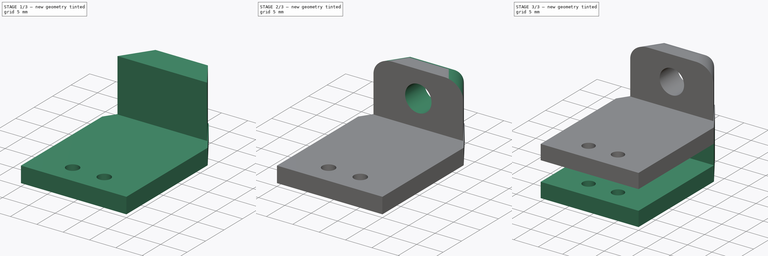
[diagram: build sequence overview — one tinted view per stage of 3, left to right]
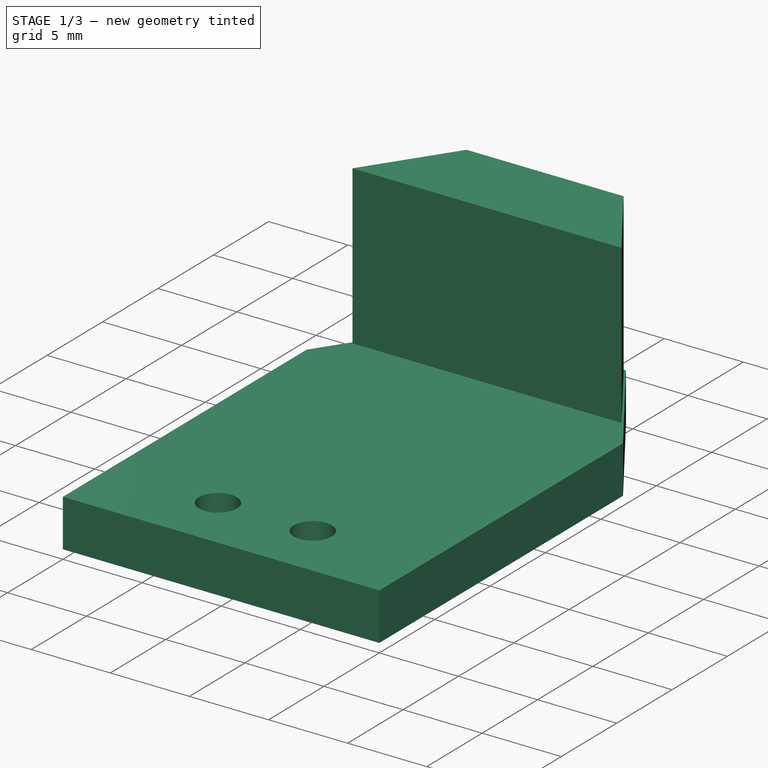
[diagram: stage 1 of 3 — iso view after this stage's code; geometry added in this stage tinted green]
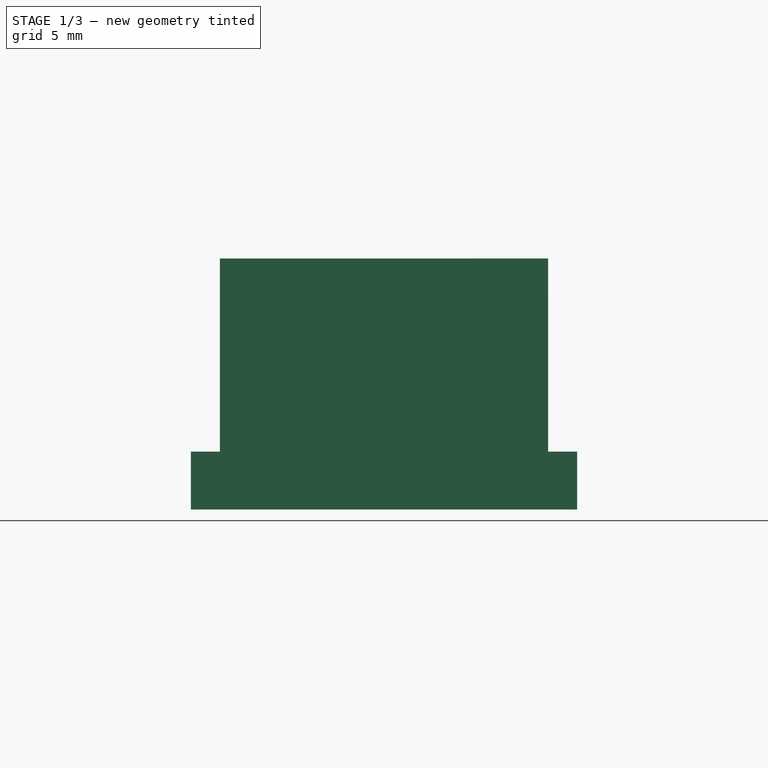
[diagram: stage 1 of 3 — front view after this stage's code; geometry added in this stage tinted green]
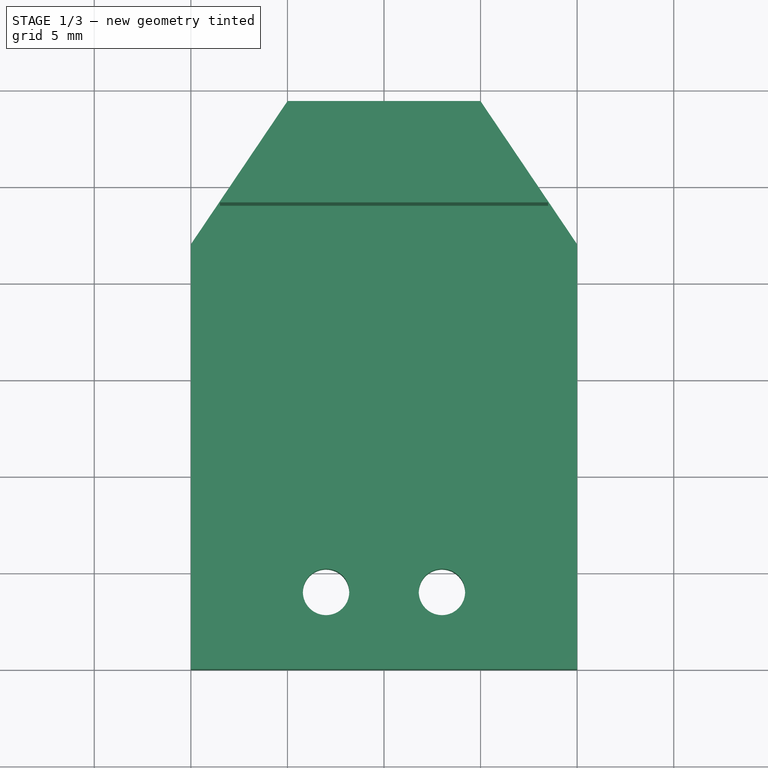
[diagram: stage 1 of 3 — top view after this stage's code; geometry added in this stage tinted green]
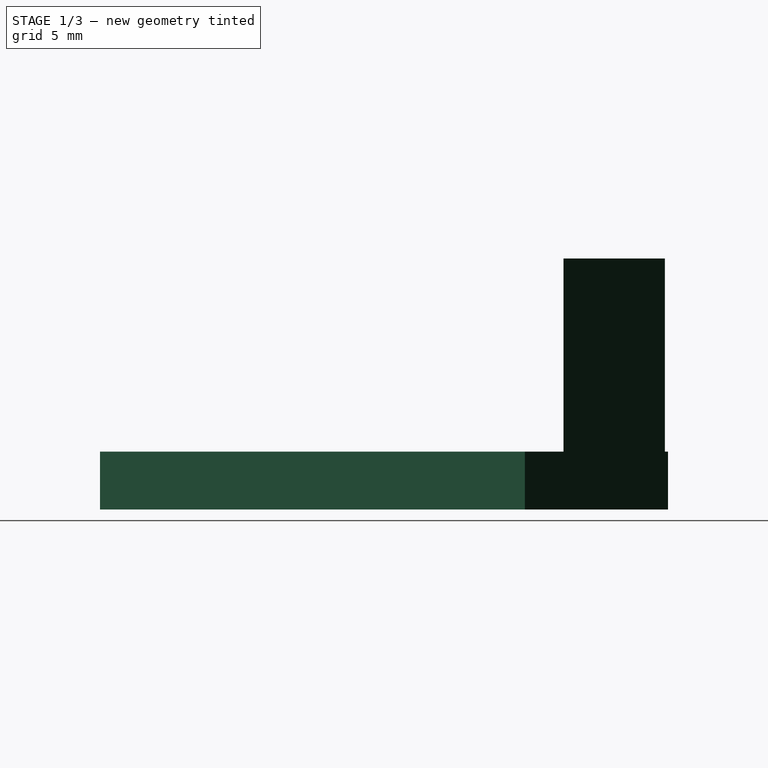
[diagram: stage 1 of 3 — right view after this stage's code; geometry added in this stage tinted green]
FCSTD DOCUMENT  (FreeCAD 0.21R33668 +26 (Git))
Label: stabiliser_holder_neutral
License: All rights reserved
LicenseURL: https://en.wikipedia.org/wiki/All_rights_reserved
objects: Sketcher::SketchObject×5, PartDesign::Pad×3, PartDesign::Pocket×2, PartDesign::Fillet×1, PartDesign::Body×1
note: 18 computed .brp shape members not serialized (recipe doc carries the construction recipe); baked Part::Feature solids carry a one-line shape summary decoded from their .brp

FEATURE [Sketcher::SketchObject] Sketch
  FullyConstrained = false
  MapMode = 5
  Support = -> [XY_Plane]
  sketch-geometry (15):
    g0: GeomPoint X=0 Y=22 Z=0
    g1: GeomPoint X=0 Y=4 Z=0
    g2: LineSegment StartX=0 StartY=4 StartZ=0 EndX=-7 EndY=4 EndZ=0
    g3: LineSegment StartX=-7 StartY=4 StartZ=0 EndX=-13 EndY=4 EndZ=0
    g4: Circle CenterX=-7 CenterY=4 CenterZ=0 NormalX=0 NormalY=0 NormalZ=1 AngleXU=0 Radius=1.2
    g5: Circle CenterX=-13 CenterY=4 CenterZ=0 NormalX=0 NormalY=0 NormalZ=1 AngleXU=0 Radius=1.2
    g6: GeomPoint X=-12.4528 Y=5.06796 Z=0
    g7: GeomPoint X=-6.92188 Y=5.19745 Z=0
    g8: LineSegment StartX=0 StartY=22 StartZ=0 EndX=-20 EndY=22 EndZ=0
    g9: LineSegment StartX=-20 StartY=22 StartZ=0 EndX=-20 EndY=0 EndZ=0
    g10: LineSegment StartX=-20 StartY=0 StartZ=0 EndX=0 EndY=0 EndZ=0
    g11: LineSegment StartX=0 StartY=0 StartZ=0 EndX=0 EndY=22 EndZ=0
    g12: LineSegment StartX=-20 StartY=22 StartZ=0 EndX=-15 EndY=29.4128 EndZ=0
    g13: LineSegment StartX=0 StartY=22 StartZ=0 EndX=-5 EndY=29.4128 EndZ=0
    g14: LineSegment StartX=-15 StartY=29.4128 StartZ=0 EndX=-5 EndY=29.4128 EndZ=0
  constraints (34):
    c: PointOnObject(g0,g-2)
    c: Distance(g-1,g0) = 22
    c: PointOnObject(g1,g-2)
    c: Distance(g1,g-1) = 4
    c: Coincident(g2,g1)
    c: Horizontal(g2)
    c: Distance(g2) = 7
    c: Coincident(g3,g2)
    c: Horizontal(g3)
    c: Distance(g3) = 6
    c: Coincident(g4,g2)
    c: Coincident(g5,g3)
    c: PointOnObject(g6,g5)
    c: PointOnObject(g7,g4)
    c: Distance(g5,g6) = 1.2
    c: Distance(g4,g7) = 1.2
    c: Coincident(g8,g0)
    c: Horizontal(g8)
    c: Coincident(g9,g8)
    c: PointOnObject(g9,g-1)
    c: Vertical(g9)
    c: Coincident(g10,g9)
    c: Coincident(g10,g-1)
    c: Coincident(g11,g10)
    c: Coincident(g11,g8)
    c: Distance(g8) = 20
    c: Coincident(g12,g8)
    c: Coincident(g13,g8)
    c: Coincident(g14,g12)
    c: Coincident(g14,g13)
    c: Horizontal(g14)
    c: Angle(g13,g8) = 0.977384
    c: Angle(g8,g12) = 0.977384
    c: Distance(g14) = 10
FEATURE [PartDesign::Pad] Pad
  Direction = (0,0,1)
  Length = 3
  Length2 = 10
  Profile = -> Sketch
  ReferenceAxis = -> Sketch [N_Axis]
  Type = 0
FEATURE [Sketcher::SketchObject] Sketch001
  FullyConstrained = false
  MapMode = 5
  Placement = pos=(0,0,3) rot=(0,0,1;0rad)
  Support = -> [Pad]
  sketch-geometry (7):
    g0: GeomPoint X=-10 Y=0 Z=0
    g1: LineSegment StartX=-10 StartY=0 StartZ=0 EndX=-10 EndY=24 EndZ=0
    g2: LineSegment StartX=-10 StartY=24 StartZ=0 EndX=-1.5 EndY=24 EndZ=0
    g3: LineSegment StartX=-10 StartY=24 StartZ=0 EndX=-18.5 EndY=24 EndZ=0
    g4: LineSegment StartX=-18.5 StartY=24 StartZ=0 EndX=-14.9616 EndY=29.2459 EndZ=0
    g5: LineSegment StartX=-1.5 StartY=24 StartZ=0 EndX=-5.03842 EndY=29.2459 EndZ=0
    g6: LineSegment StartX=-5.03842 StartY=29.2459 StartZ=0 EndX=-14.9616 EndY=29.2459 EndZ=0
  constraints (18):
    c: PointOnObject(g0,g-1)
    c: Distance(g-1,g0) = 10
    c: Coincident(g1,g0)
    c: Vertical(g1)
    c: Distance(g1) = 24
    c: Coincident(g2,g1)
    c: Horizontal(g2)
    c: Coincident(g3,g2)
    c: Horizontal(g3)
    c: Coincident(g4,g3)
    c: Coincident(g5,g2)
    c: Coincident(g6,g5)
    c: Coincident(g6,g4)
    c: Horizontal(g6)
    c: Angle(g5,g2) = 0.977384
    c: Angle(g3,g4) = 0.977384
    c: Distance(g2) = 8.5
    c: Distance(g3) = 8.5
FEATURE [PartDesign::Pad] Pad001
  BaseFeature = -> Pad
  Direction = (0,0,1)
  Length = 10
  Length2 = 10
  Profile = -> Sketch001
  ReferenceAxis = -> Sketch001 [N_Axis]
  Type = 0
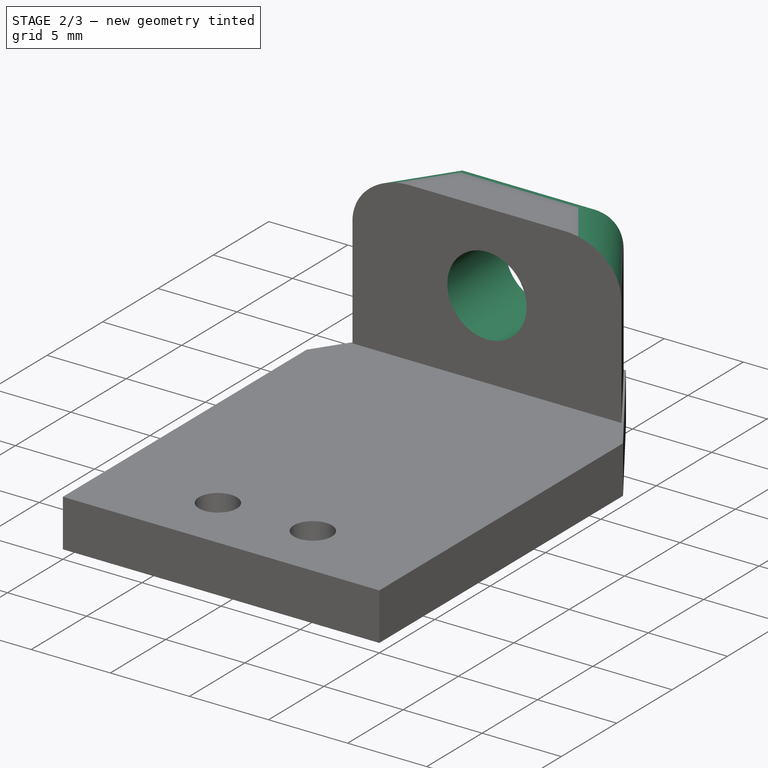
[diagram: stage 2 of 3 — iso view after this stage's code; geometry added in this stage tinted green]
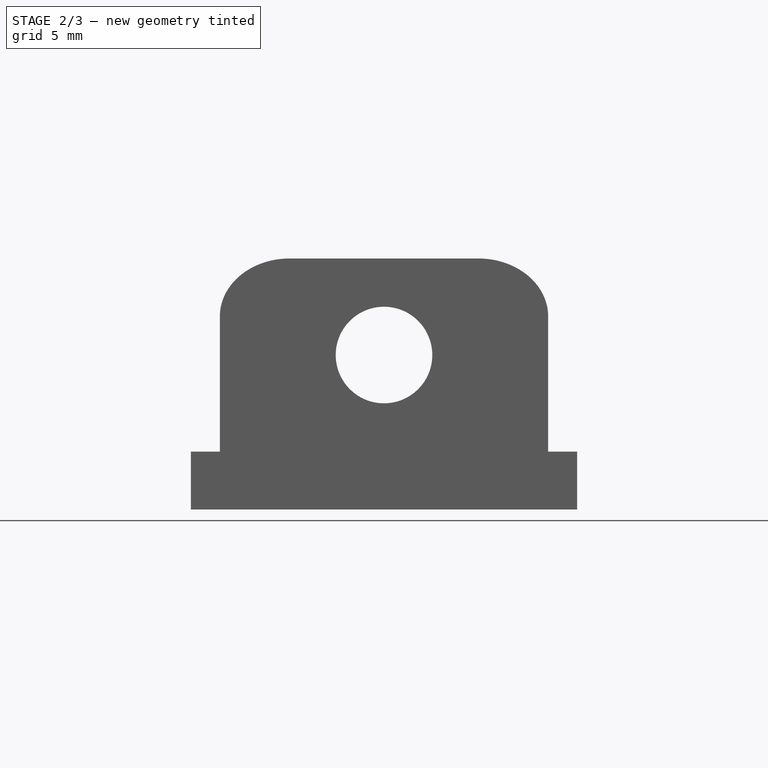
[diagram: stage 2 of 3 — front view after this stage's code; geometry added in this stage tinted green]
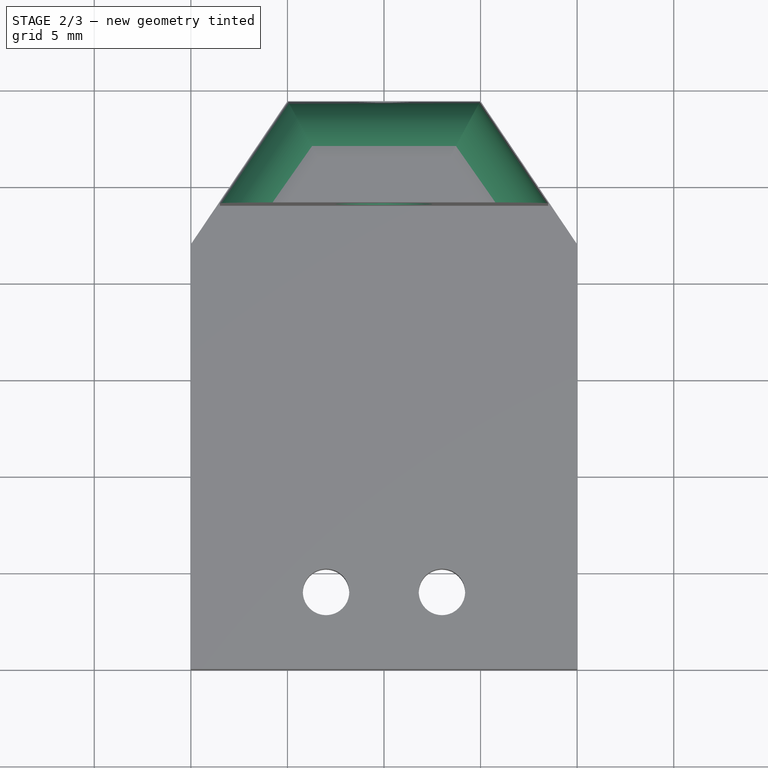
[diagram: stage 2 of 3 — top view after this stage's code; geometry added in this stage tinted green]
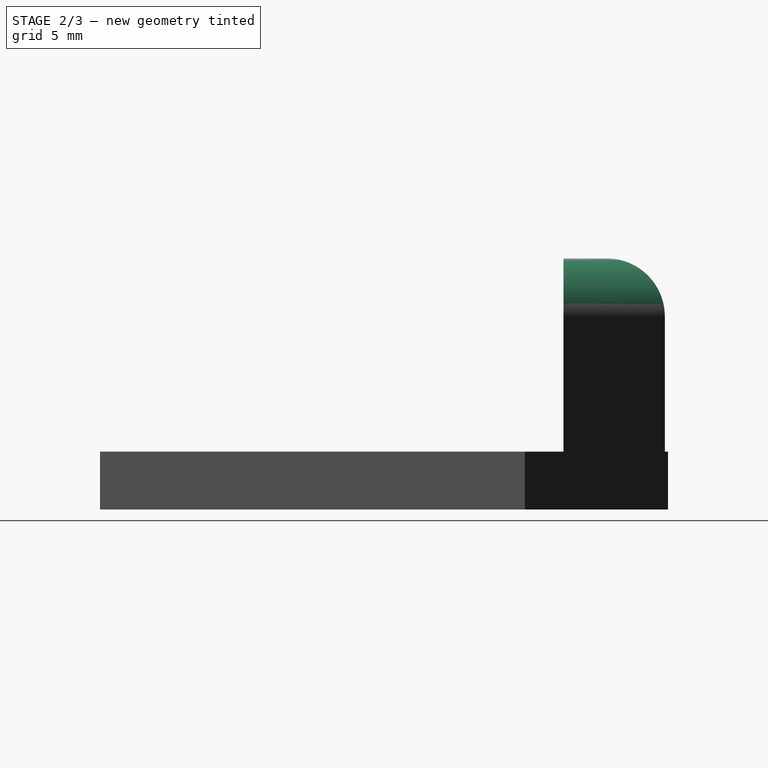
[diagram: stage 2 of 3 — right view after this stage's code; geometry added in this stage tinted green]
FEATURE [PartDesign::Fillet] Fillet
  Base = -> Pad001 [Edge34,Edge36,Edge38]
  BaseFeature = -> Pad001
  Radius = 3
  SupportTransform = false
  UseAllEdges = false
FEATURE [Sketcher::SketchObject] Sketch002
  FullyConstrained = false
  MapMode = 5
  Placement = pos=(0,24,0) rot=(1,0,0;1.5708rad)
  Support = -> [Fillet]
  sketch-geometry (4):
    g0: LineSegment StartX=0 StartY=0 StartZ=0 EndX=-10 EndY=0 EndZ=0
    g1: LineSegment StartX=-10 StartY=0 StartZ=0 EndX=-10 EndY=8 EndZ=0
    g2: Circle CenterX=-10 CenterY=8 CenterZ=0 NormalX=0 NormalY=0 NormalZ=1 AngleXU=0 Radius=2.5
    g3: GeomPoint X=-11.778 Y=9.75746 Z=0
  constraints (9):
    c: Coincident(g0,g-1)
    c: PointOnObject(g0,g-1)
    c: Coincident(g1,g0)
    c: Vertical(g1)
    c: Distance(g0) = 10
    c: Distance(g1) = 8
    c: Coincident(g2,g1)
    c: PointOnObject(g3,g2)
    c: Distance(g3,g2) = 2.5
FEATURE [PartDesign::Pocket] Pocket
  BaseFeature = -> Fillet
  Direction = (0,1,-2e-16)
  Length = 6
  Length2 = 5
  Profile = -> Sketch002
  ReferenceAxis = -> Sketch002 [N_Axis]
  Type = 0
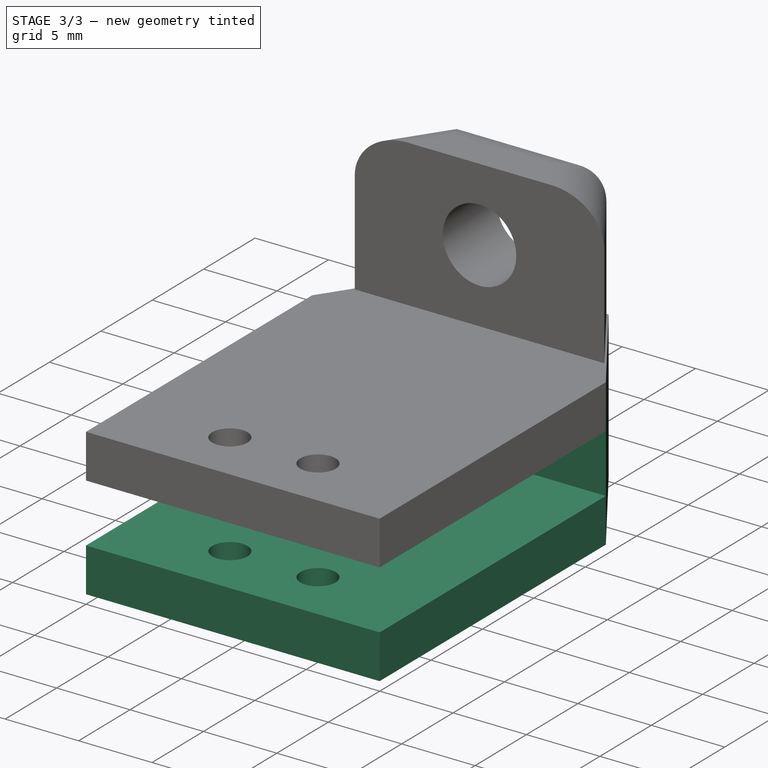
[diagram: stage 3 of 3 — iso view after this stage's code; geometry added in this stage tinted green]
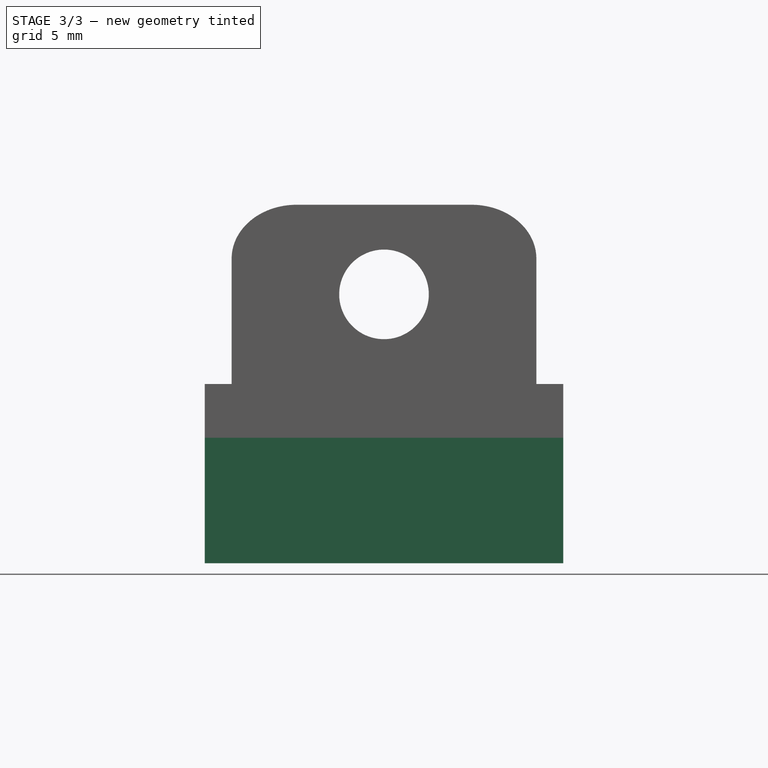
[diagram: stage 3 of 3 — front view after this stage's code; geometry added in this stage tinted green]
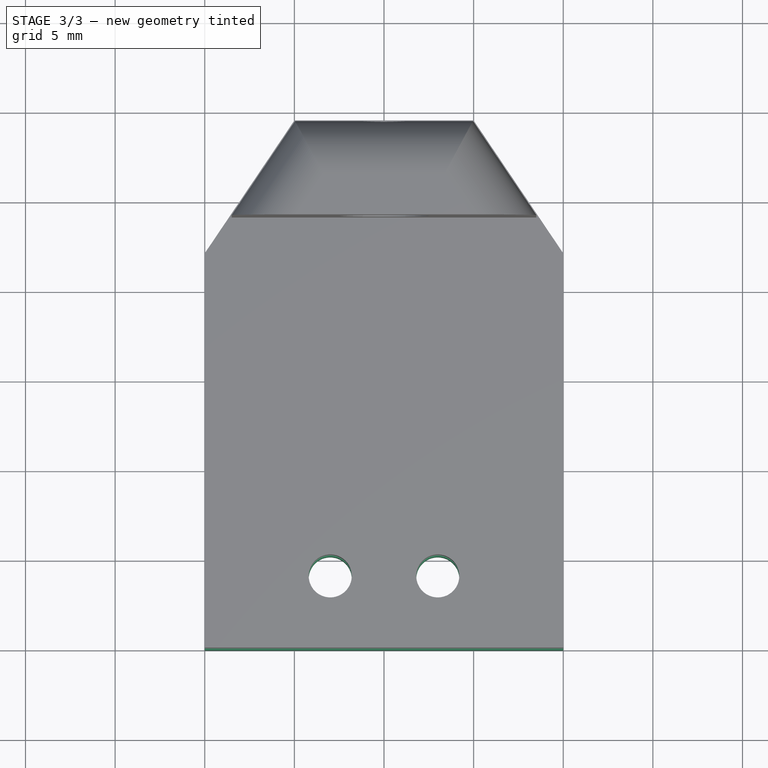
[diagram: stage 3 of 3 — top view after this stage's code; geometry added in this stage tinted green]
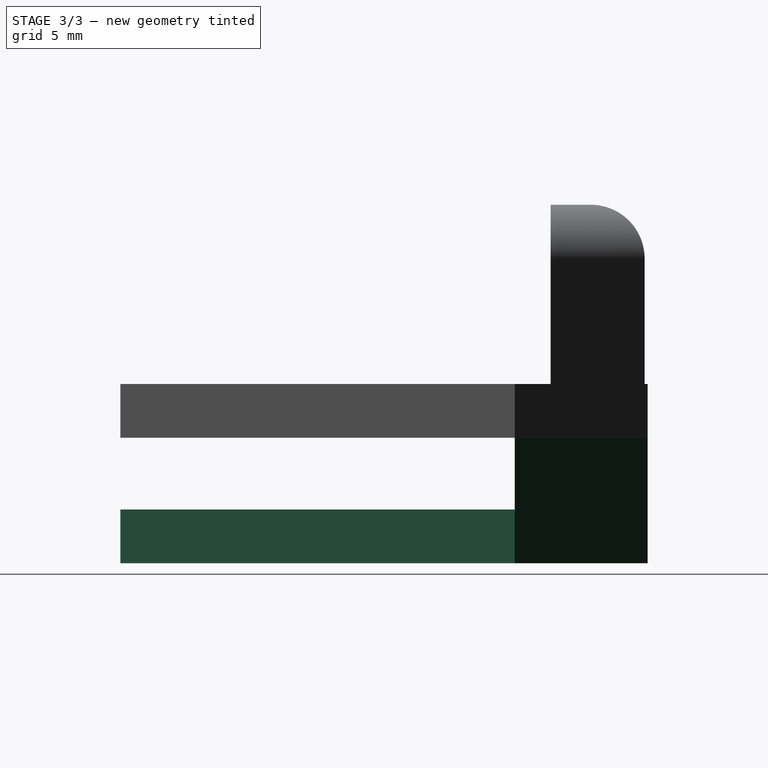
[diagram: stage 3 of 3 — right view after this stage's code; geometry added in this stage tinted green]
FEATURE [Sketcher::SketchObject] Sketch003
  FullyConstrained = false
  MapMode = 5
  Placement = pos=(0,0,0) rot=(1,0,0;3.14159rad)
  Support = -> [Pocket]
  sketch-geometry (15):
    g0: LineSegment StartX=0 StartY=0 StartZ=0 EndX=-20 EndY=0 EndZ=0
    g1: LineSegment StartX=-20 StartY=0 StartZ=0 EndX=-20 EndY=-22 EndZ=0
    g2: LineSegment StartX=-20 StartY=-22 StartZ=0 EndX=-15 EndY=-29.4128 EndZ=0
    g3: LineSegment StartX=-15 StartY=-29.4128 StartZ=0 EndX=-5 EndY=-29.4128 EndZ=0
    g4: LineSegment StartX=-5 StartY=-29.4128 StartZ=0 EndX=0 EndY=-22 EndZ=0
    g5: LineSegment StartX=0 StartY=-22 StartZ=0 EndX=0 EndY=0 EndZ=0
    g6: LineSegment StartX=-20 StartY=-22 StartZ=0 EndX=0 EndY=-22 EndZ=0
    g7: GeomPoint X=-7 Y=0 Z=0
    g8: GeomPoint X=-13 Y=0 Z=0
    g9: Circle CenterX=-13 CenterY=-4 CenterZ=0 NormalX=0 NormalY=0 NormalZ=1 AngleXU=0 Radius=1.2
    g10: Circle CenterX=-7 CenterY=-4 CenterZ=0 NormalX=0 NormalY=0 NormalZ=1 AngleXU=0 Radius=1.2
    g11: LineSegment StartX=-13 StartY=0 StartZ=0 EndX=-13 EndY=-4 EndZ=0
    g12: LineSegment StartX=-7 StartY=0 StartZ=0 EndX=-7 EndY=-4 EndZ=0
    g13: GeomPoint X=-12.1864 Y=-3.11794 Z=0
    g14: GeomPoint X=-7.94191 Y=-3.25649 Z=0
  constraints (35):
    c: Coincident(g0,g-1)
    c: PointOnObject(g0,g-1)
    c: Coincident(g1,g0)
    c: Vertical(g1)
    c: Coincident(g2,g1)
    c: Coincident(g3,g2)
    c: Horizontal(g3)
    c: Coincident(g4,g3)
    c: PointOnObject(g4,g-2)
    c: Coincident(g5,g4)
    c: Coincident(g5,g0)
    c: Distance(g1) = 22
    c: Distance(g3) = 10
    c: Distance(g5) = 22
    c: Distance(g0) = 20
    c: Coincident(g6,g1)
    c: Coincident(g6,g4)
    c: Angle(g2,g6) = 0.977384
    c: Angle(g6,g4) = 0.977384
    c: PointOnObject(g7,g0)
    c: PointOnObject(g8,g0)
    c: Distance(g7,g0) = 7
    c: Distance(g8,g7) = 6
    c: Coincident(g11,g8)
    c: Coincident(g11,g9)
    c: Vertical(g11)
    c: Coincident(g12,g7)
    c: Coincident(g12,g10)
    c: Vertical(g12)
    c: PointOnObject(g13,g9)
    c: PointOnObject(g14,g10)
    c: Distance(g14,g10) = 1.2
    c: Distance(g13,g9) = 1.2
    c: Distance(g11) = 4
    c: Distance(g12) = 4
FEATURE [PartDesign::Pad] Pad002
  BaseFeature = -> Pocket
  Direction = (0,0,-1)
  Length = 7
  Length2 = 10
  Profile = -> Sketch003
  ReferenceAxis = -> Sketch003 [N_Axis]
  Type = 0
FEATURE [Sketcher::SketchObject] Sketch004
  FullyConstrained = true
  MapMode = 5
  Placement = pos=(0,0,0) rot=(1,0,0;1.5708rad)
  Support = -> [Pad002]
  sketch-geometry (4):
    g0: LineSegment StartX=0 StartY=0 StartZ=0 EndX=0 EndY=-4 EndZ=0
    g1: LineSegment StartX=0 StartY=-4 StartZ=0 EndX=-20 EndY=-4 EndZ=0
    g2: LineSegment StartX=-20 StartY=-4 StartZ=0 EndX=-20 EndY=0 EndZ=0
    g3: LineSegment StartX=-20 StartY=0 StartZ=0 EndX=0 EndY=0 EndZ=0
  constraints (11):
    c: Coincident(g0,g-1)
    c: Vertical(g0)
    c: Coincident(g1,g0)
    c: Horizontal(g1)
    c: Coincident(g2,g1)
    c: PointOnObject(g2,g-1)
    c: Vertical(g2)
    c: Coincident(g3,g2)
    c: Coincident(g3,g0)
    c: Distance(g2) = 4
    c: Distance(g3) = 20
FEATURE [PartDesign::Pocket] Pocket001
  BaseFeature = -> Pad002
  Direction = (0,1,-2e-16)
  Length = 22
  Length2 = 5
  Profile = -> Sketch004
  ReferenceAxis = -> Sketch004 [N_Axis]
  Type = 0
FEATURE [PartDesign::Body] Body  label="Körper"
  Group = -> [Sketch,Pad,Sketch001,Pad001,Fillet,Sketch002,Pocket,Sketch003,Pad002,Sketch004,Pocket001]
  Origin = -> Origin
  Tip = -> Pocket001
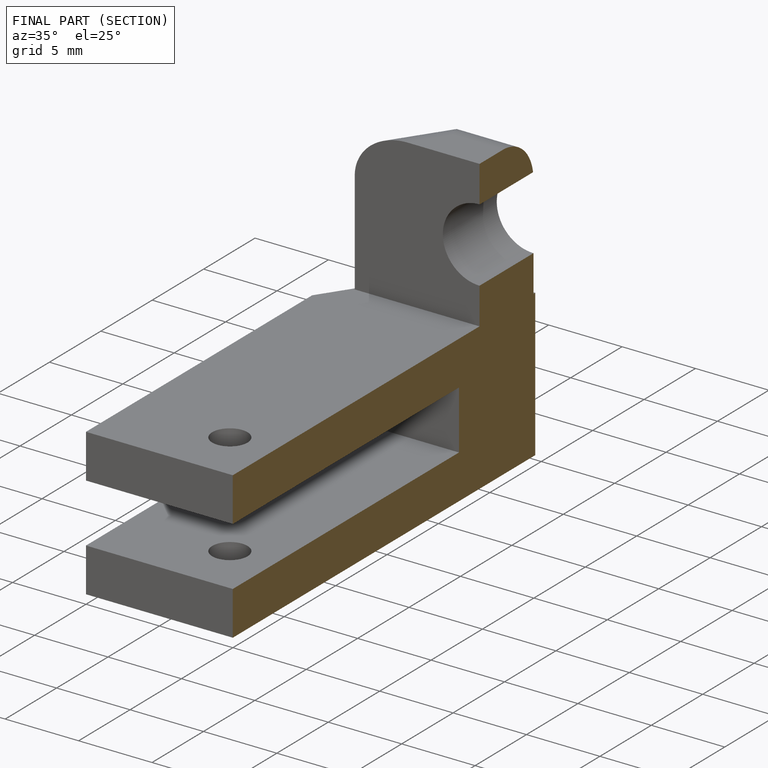
[diagram: finished part — half-section view (interior)]
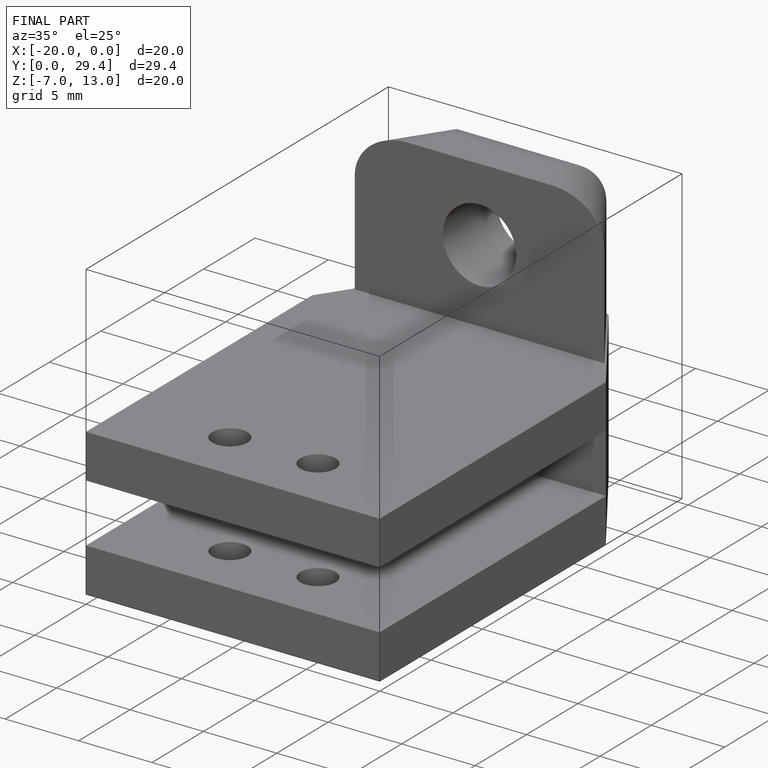
[diagram: finished part — iso view with bounding-box wireframe]
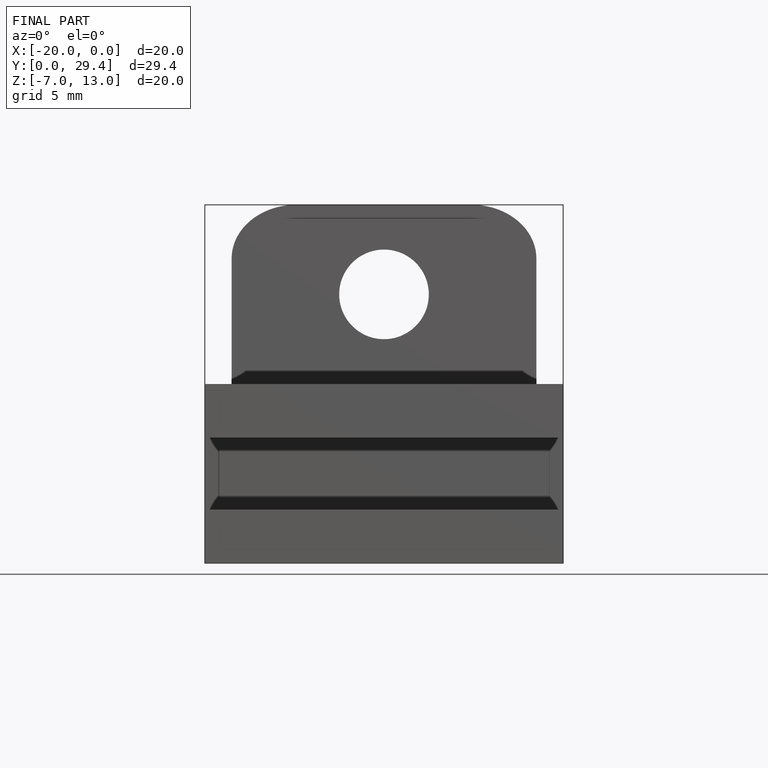
[diagram: finished part — front view with bounding-box wireframe]
